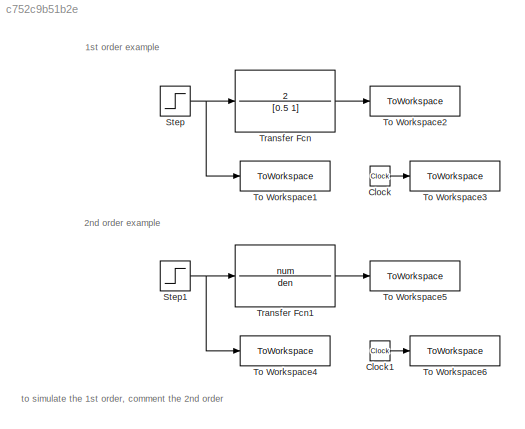
MODEL slx_c752c9b51b2e
KIND model
CONFIG AbsTol = auto
CONFIG EnableMultiTasking = off
CONFIG FixedStep = auto
CONFIG MaxStep = auto
CONFIG MinStep = auto
CONFIG RelTol = 1e-3
CONFIG SampleTimeConstraint = Unconstrained
CONFIG SolverName = VariableStepAuto
CONFIG StartTime = 0.0
CONFIG StopTime = 10.0
BLOCK [Clock] Clock
BLOCK [Clock] Clock1
BLOCK [Step] Step
  SampleTime = tSample
  Time = 0
BLOCK [Step] Step1
  SampleTime = tSample
  Time = 0
BLOCK [ToWorkspace] To Workspace1
  FixptAsFi = on
  MaxDataPoints = inf
  SampleTime = tSample
  VariableName = in
BLOCK [ToWorkspace] To Workspace2
  FixptAsFi = on
  MaxDataPoints = inf
  SampleTime = tSample
  VariableName = out
BLOCK [ToWorkspace] To Workspace3
  FixptAsFi = on
  MaxDataPoints = inf
  SampleTime = tSample
  VariableName = time
BLOCK [ToWorkspace] To Workspace4
  FixptAsFi = on
  MaxDataPoints = inf
  SampleTime = tSample
  VariableName = in1
BLOCK [ToWorkspace] To Workspace5
  FixptAsFi = on
  MaxDataPoints = inf
  SampleTime = tSample
  VariableName = out1
BLOCK [ToWorkspace] To Workspace6
  FixptAsFi = on
  MaxDataPoints = inf
  SampleTime = tSample
  VariableName = time1
BLOCK [TransferFcn] Transfer Fcn
  Denominator = [0.5 1]
  Numerator = 2
BLOCK [TransferFcn] Transfer Fcn1
  Denominator = den
  Numerator = num
ANNOTATION (root): 1st order example
ANNOTATION (root): 2nd order example
ANNOTATION (root): to simulate the 1st order, comment the 2nd order
LINE Clock1:1 -> To Workspace6:1
LINE Clock:1 -> To Workspace3:1
NET Step1:1 -> To Workspace4:1, Transfer Fcn1:1
NET Step:1 -> To Workspace1:1, Transfer Fcn:1
LINE Transfer Fcn1:1 -> To Workspace5:1
LINE Transfer Fcn:1 -> To Workspace2:1
note: NET lines group one-source signal fan-out (src -> all destinations, sorted); 1:1 wires keep LINE
